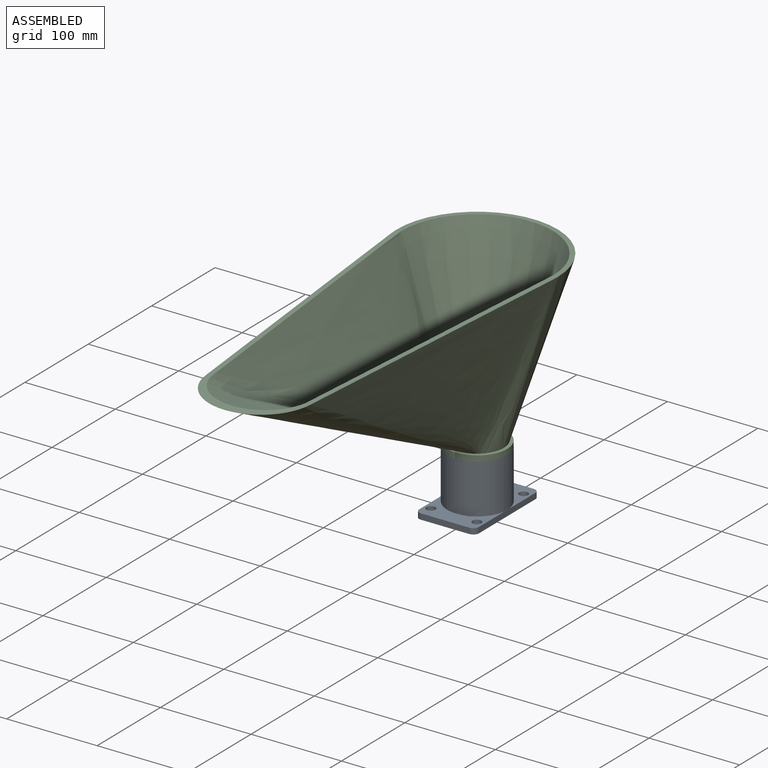
[diagram: assembled view]
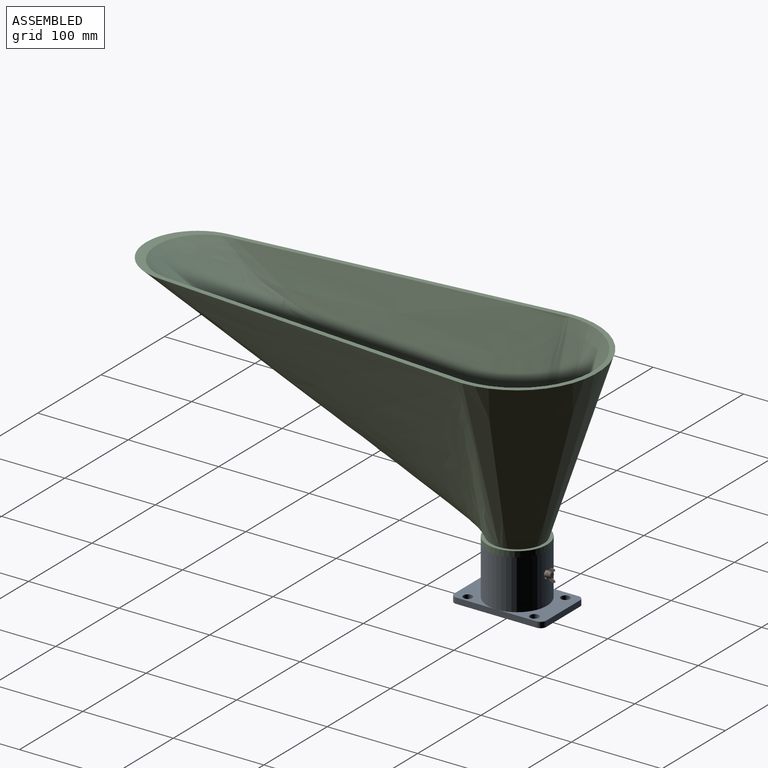
[diagram: assembled view, second angle]
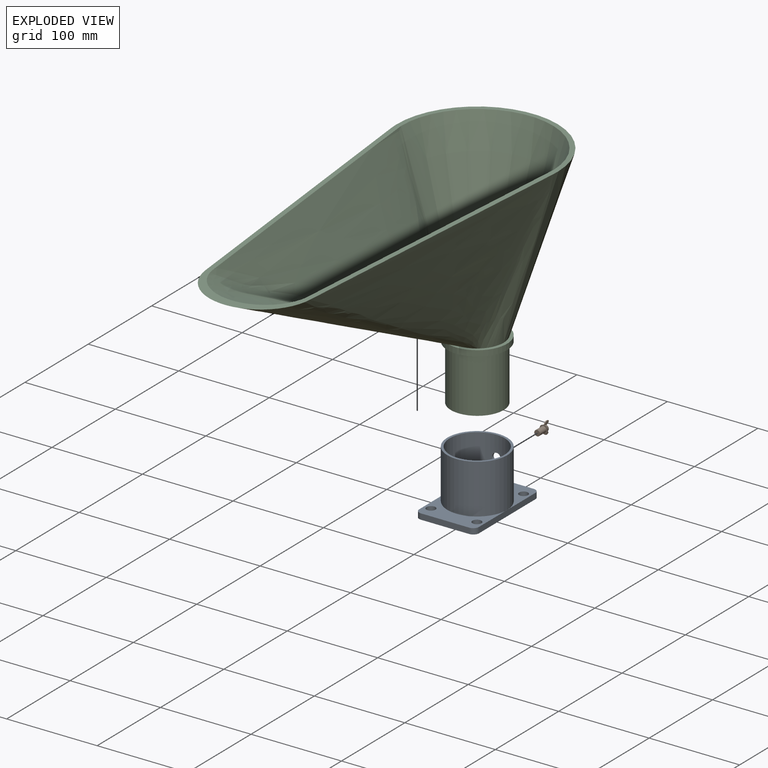
[diagram: exploded view]
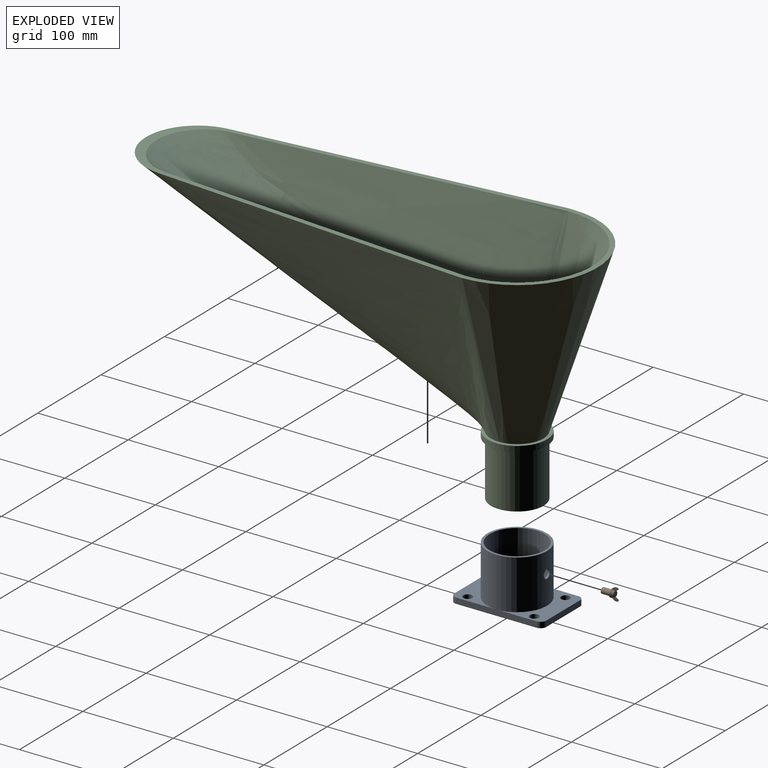
[diagram: exploded view, second angle]
ASSEMBLY  parts=3 mates=3
PART A: 19 faces, bbox 66x101.6x61 mm
  f0: cylinder r=30.48mm len=60.96mm, axis (0,0,-1), area 11603.6mm2, adj f16,f17,f18
  f1: cylinder r=33.02mm len=66.04mm, axis (0,0,-1), area 11259.1mm2, adj f2,f15,f17,f18
  f2: plane 66.04x50.8mm, normal (0,0,1), area 1470.7mm2, adj f1,f5,f6,f7,f8,f9,f10,f11
  f3: plane 53.34x6.35mm, normal (0,-1,0), area 338.7mm2, adj f4,f14,f15,f16
  f4: cylinder r=6.35mm len=6.35mm, axis (0,0,-1), area 63.3mm2, adj f3,f5,f15,f16
  f5: plane 88.9x6.35mm, normal (1,0,0), area 564.5mm2, adj f2,f4,f6,f15,f16
  f6: cylinder r=6.35mm len=6.35mm, axis (0,0,-1), area 63.3mm2, adj f2,f5,f7,f16
  f7: plane 53.34x6.35mm, normal (0,1,0), area 338.7mm2, adj f2,f6,f8,f16
  f8: cylinder r=6.35mm len=6.35mm, axis (0,0,-1), area 63.3mm2, adj f2,f7,f9,f16
  f9: plane 88.9x6.35mm, normal (-1,0,0), area 564.5mm2, adj f2,f8,f14,f15,f16
  f10: cylinder r=4.95mm len=9.91mm, axis (0,0,-1), area 197.6mm2, adj f2,f16
  f11: cylinder r=4.95mm len=9.91mm, axis (0,0,-1), area 197.6mm2, adj f2,f16
  f12: cylinder r=4.95mm len=9.91mm, axis (0,0,-1), area 197.6mm2, adj f15,f16
  f13: cylinder r=4.95mm len=9.91mm, axis (0,0,-1), area 197.6mm2, adj f15,f16
  f14: cylinder r=6.35mm len=6.35mm, axis (0,0,-1), area 63.3mm2, adj f3,f9,f15,f16
  f15: plane 66.04x50.8mm, normal (0,0,1), area 1470.7mm2, adj f1,f3,f4,f5,f9,f12,f13,f14
  f16: plane 101.6x66.04mm, normal (0,0,-1), area 3448.1mm2, adj f0,f3,f4,f5,f6,f7,f8,f9
  f17: plane 66.04x66.04mm, normal (0,0,1), area 506.7mm2, adj f0,f1
  f18: cylinder r=4.76mm len=9.53mm, axis (0,-1,0), area 76.4mm2, adj f0,f1
PART B: 12 faces, bbox 14.4x8.9x17.5 mm
  f0: cone r=4.45mm half-angle=20deg, axis (0,0,-1), area 43.6mm2, adj f4,f5,f7,f10
  f1: cylinder r=3.17mm len=10.16mm, axis (0,0,-1), area 202.7mm2, adj f2,f5
  f2: plane 6.35x6.35mm, normal (0,0,-1), area 31.7mm2, adj f1
  f3: cone r=4.45mm half-angle=20deg, axis (0,0,-1), area 43.6mm2, adj f4,f5,f6,f9
  f4: plane 6.12x6.12mm, normal (0,0,1), area 29.4mm2, adj f0,f3,f6,f7,f8,f9,f10,f11
  f5: plane 8.89x8.89mm, normal (0,0,-1), area 30.4mm2, adj f0,f1,f3,f6,f7,f8,f9,f10
  f6: plane 7.35x4.18mm, normal (0,-1,0), area 18.2mm2, adj f3,f4,f5,f8
  f7: plane 7.35x4.18mm, normal (0,1,0), area 18.2mm2, adj f0,f4,f5,f8
  f8: extruded ~7.25x4.03mm, area 13.4mm2, adj f4,f5,f6,f7
  f9: plane 7.35x4.18mm, normal (0,-1,0), area 18.2mm2, adj f3,f4,f5,f11
  f10: plane 7.35x4.18mm, normal (0,1,0), area 18.2mm2, adj f0,f4,f5,f11
  f11: extruded ~7.25x4.03mm, area 13.4mm2, adj f4,f5,f9,f10
PART C: 12 faces, bbox 505.5x188x264.2 mm
  f0: cylinder r=24.13mm len=72.39mm, axis (0,0,-1), area 10975.3mm2, adj f2,f8
  f1: cylinder r=29.21mm len=60.96mm, axis (0,0,-1), area 11188.1mm2, adj f2,f10
  f2: plane 58.42x58.42mm, normal (0,0,-1), area 851.3mm2, adj f0,f1
  f3: plane 499.33x181.83mm, normal (0,0,1), area 6307mm2, adj f4,f5,f6,f7
  f4: cone r=29.21mm half-angle=17.7deg, axis (0,0,1), area 36363.3mm2, adj f3,f5,f11
  f5: bspline ~410.82x188.56mm, area 109616.8mm2, adj f3,f4,f11
  f6: cone r=24.37mm half-angle=17.7deg, axis (0,0,1), area 32665.6mm2, adj f3,f7,f8
  f7: offset ~417.69x198.72mm, area 103808.1mm2, adj f3,f6,f8
  f8: plane 53.53x51mm, normal (0,0,1), area 280.6mm2, adj f0,f6,f7
  f9: cylinder r=33.02mm len=66.04mm, axis (0,0,1), area 1317.4mm2, adj f10,f11
  f10: plane 66.04x66.04mm, normal (0,0,-1), area 744.9mm2, adj f1,f9
  f11: plane 69.27x69.27mm, normal (0,0,1), area 745.1mm2, adj f4,f5,f9
PLACE A at identity fixed
PLACE B rot(axis=(-0.59,-0.57,-0.57),118.7deg) t=(0,26.92,38.1)mm
PLACE C rot(axis=(0,0,-1),89.1deg) t=(0,0,6.35)mm
MATE planar C.f0 <-> A.f0  axis (0,0,-1) through (0,0,60.96)mm
MATE cylindrical C.f0 <-> A.f0  axis (0,0,-1) through (0,0,30.48)mm
MATE cylindrical B.f0 <-> A.f18  axis (0,-1,0) through (0,24.38,38.1)mm
